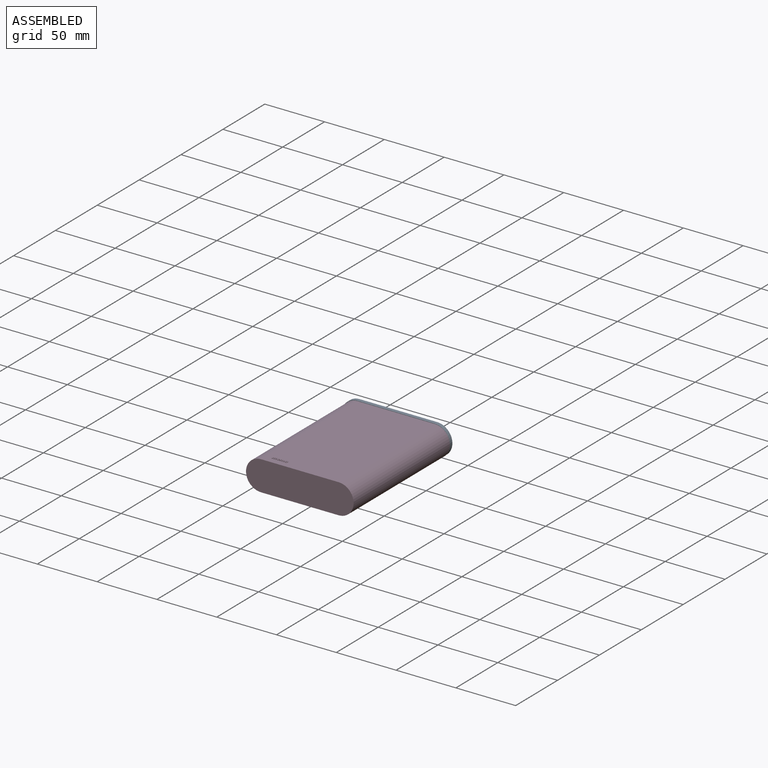
[diagram: assembled view]
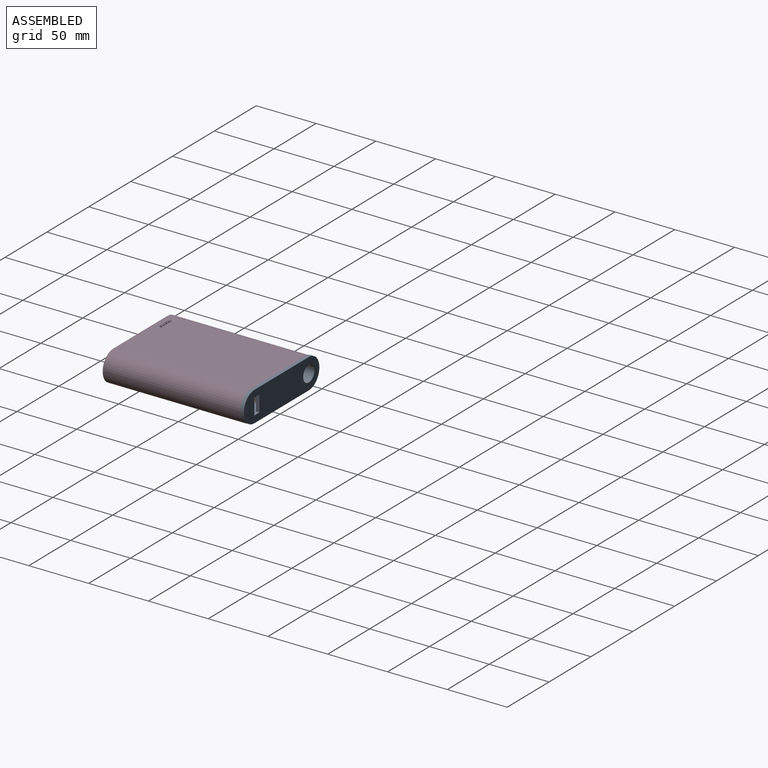
[diagram: assembled view, second angle]
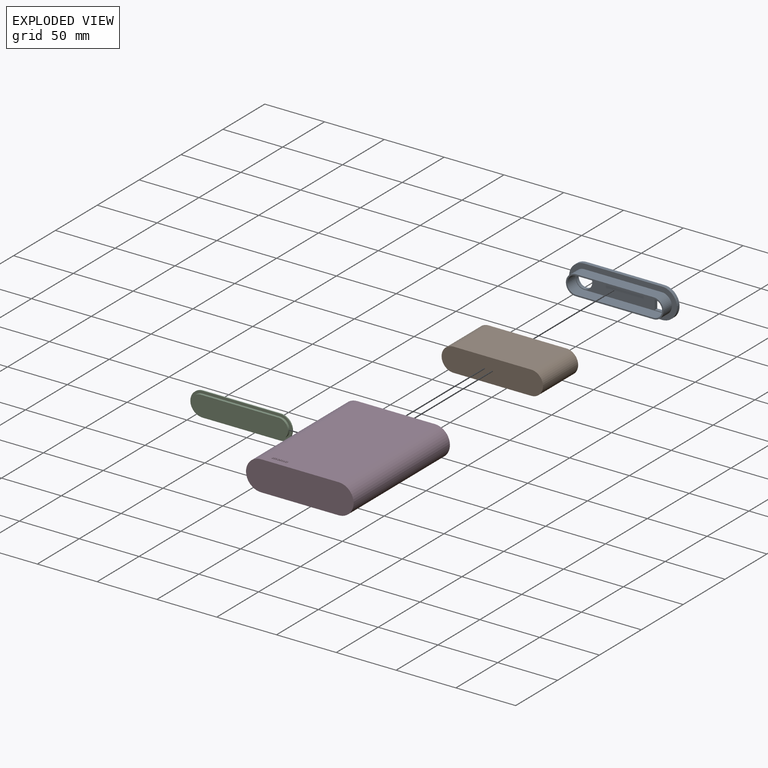
[diagram: exploded view]
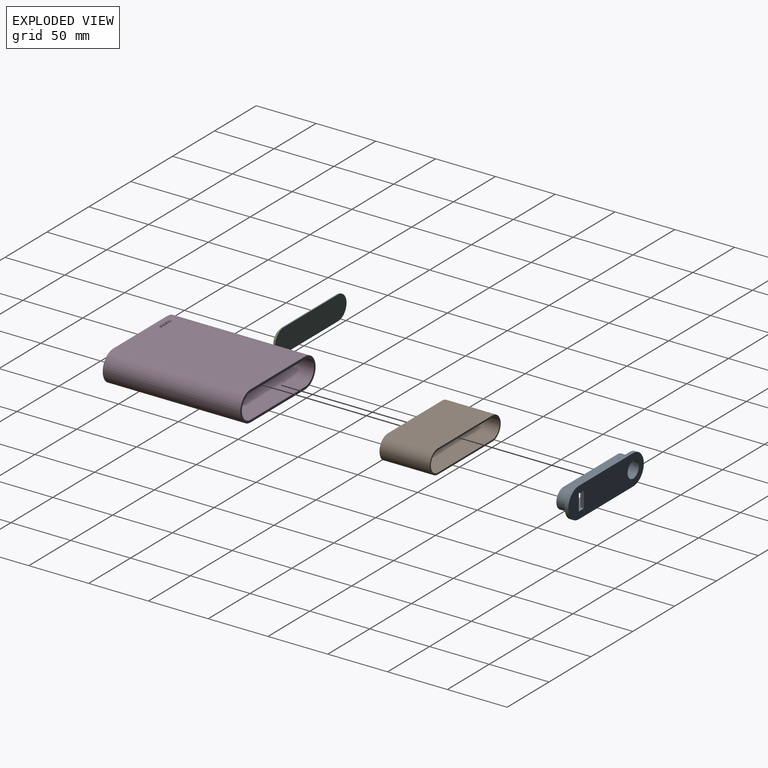
[diagram: exploded view, second angle]
ASSEMBLY  parts=4 mates=3
PART A: 21 faces, bbox 90.3x13x25.3 mm
  f0: plane 65x10mm, normal (0,0,-1), area 650mm2, adj f1,f7,f8,f20
  f1: cylinder r=7.25mm len=14.5mm, axis (0,1,0), area 227.1mm2, adj f0,f2,f8,f20
  f2: plane 64.94x10mm, normal (0,0,1), area 649.4mm2, adj f1,f7,f8,f20
  f3: cylinder r=8.33mm len=16.65mm, axis (0,1,0), area 260.9mm2, adj f4,f6,f8,f14
  f4: plane 65x10mm, normal (0,0,1), area 650mm2, adj f3,f5,f8,f14
  f5: cylinder r=8.33mm len=16.65mm, axis (0,1,0), area 261.6mm2, adj f4,f6,f8,f14
  f6: plane 64.94x10mm, normal (0,0,-1), area 649.4mm2, adj f3,f5,f8,f14
  f7: cylinder r=7.25mm len=14.5mm, axis (0,1,0), area 227.8mm2, adj f0,f2,f8,f20
  f8: plane 81.59x16.65mm, normal (0,-1,0), area 192.5mm2, adj f0,f1,f2,f3,f4,f5,f6,f7
  f9: plane 90.25x25.25mm, normal (0,1,0), area 1920.3mm2, adj f10,f11,f12,f13,f15,f16,f17,f18
  f10: cylinder r=12.63mm len=25.25mm, axis (0,1,0), area 119mm2, adj f9,f11,f13,f14
  f11: plane 65x3mm, normal (0,0,1), area 195mm2, adj f9,f10,f12,f14
  f12: cylinder r=12.63mm len=25.25mm, axis (0,1,0), area 119mm2, adj f9,f11,f13,f14
  f13: plane 65x3mm, normal (0,0,-1), area 195mm2, adj f9,f10,f12,f14
  f14: plane 90.25x25.25mm, normal (0,-1,0), area 843.1mm2, adj f3,f4,f5,f6,f10,f11,f12,f13
  f15: plane 13.5x3mm, normal (-1,0,0), area 40.5mm2, adj f9,f16,f18,f20
  f16: plane 6x3mm, normal (0,0,1), area 18mm2, adj f9,f15,f17,f20
  f17: plane 13.5x3mm, normal (1,0,0), area 40.5mm2, adj f9,f16,f18,f20
  f18: plane 6x3mm, normal (0,0,-1), area 18mm2, adj f9,f15,f17,f20
  f19: cylinder r=6.7mm len=13.4mm, axis (0,1,0), area 126.3mm2, adj f9,f20
  f20: plane 79.44x14.5mm, normal (0,-1,0), area 884.7mm2, adj f0,f1,f2,f7,f15,f16,f17,f18
PART B: 11 faces, bbox 84.8x42x19.8 mm
  f0: plane 84.8x19.8mm, normal (0,1,0), area 1594.9mm2, adj f5,f6,f7,f8
  f1: plane 65x40.5mm, normal (0,0,1), area 2632.5mm2, adj f3,f4,f9,f10
  f2: plane 65x40.5mm, normal (0,0,-1), area 2632.5mm2, adj f3,f4,f9,f10
  f3: cylinder r=8.5mm len=40.5mm, axis (0,1,0), area 1081.5mm2, adj f1,f2,f9,f10
  f4: cylinder r=8.5mm len=40.5mm, axis (0,1,0), area 1081.5mm2, adj f1,f2,f9,f10
  f5: plane 65x42mm, normal (0,0,-1), area 2730mm2, adj f0,f6,f8,f9
  f6: cylinder r=9.9mm len=42mm, axis (0,1,0), area 1306.3mm2, adj f0,f5,f7,f9
  f7: plane 65x42mm, normal (0,0,1), area 2730mm2, adj f0,f6,f8,f9
  f8: cylinder r=9.9mm len=42mm, axis (0,1,0), area 1306.3mm2, adj f0,f5,f7,f9
  f9: plane 84.8x19.8mm, normal (0,-1,0), area 262.9mm2, adj f1,f2,f3,f4,f5,f6,f7,f8
  f10: plane 82x17mm, normal (0,-1,0), area 1332mm2, adj f1,f2,f3,f4
PART C: 11 faces, bbox 85.2x3x20.2 mm
  f0: plane 65x1mm, normal (0,0,-1), area 65mm2, adj f1,f3,f4,f5
  f1: cylinder r=10.1mm len=20.2mm, axis (0,1,0), area 31.7mm2, adj f0,f2,f4,f5
  f2: plane 65x1mm, normal (0,0,1), area 65mm2, adj f1,f3,f4,f5
  f3: cylinder r=10.1mm len=20.2mm, axis (0,1,0), area 31.7mm2, adj f0,f2,f4,f5
  f4: plane 85.2x20.2mm, normal (0,-1,0), area 392.4mm2, adj f0,f1,f2,f3,f7,f8,f9,f10
  f5: plane 85.2x20.2mm, normal (0,1,0), area 1633.5mm2, adj f0,f1,f2,f3
  f6: plane 81x16mm, normal (0,-1,0), area 1241.1mm2, adj f7,f8,f9,f10
  f7: cylinder r=8mm len=16mm, axis (0,1,0), area 50.3mm2, adj f4,f6,f8,f10
  f8: plane 65x2mm, normal (0,0,1), area 130mm2, adj f4,f6,f7,f9
  f9: cylinder r=8mm len=16mm, axis (0,1,0), area 50.3mm2, adj f4,f6,f8,f10
  f10: plane 65x2mm, normal (0,0,-1), area 130mm2, adj f4,f6,f7,f9
PART D: 121 faces, bbox 90x115x25.4 mm
  f0: plane 115x65mm, normal (0,0,1), area 7457.5mm2, adj f1,f3,f8,f9,f21,f22,f23,f24
  f1: cylinder r=12.5mm len=115mm, axis (0,-1,0), area 4516mm2, adj f0,f2,f8,f9
  f2: plane 115x65mm, normal (0,0,-1), area 7475mm2, adj f1,f3,f8,f9
  f3: cylinder r=12.5mm len=115mm, axis (0,-1,0), area 4516mm2, adj f0,f2,f8,f9
  f4: plane 65.01x43mm, normal (0,0,1), area 2795mm2, adj f5,f7,f8,f14
  f5: cylinder r=10.5mm len=43mm, axis (0,-1,0), area 1418.4mm2, adj f4,f6,f8,f14
  f6: plane 65.01x43mm, normal (0,0,-1), area 2795mm2, adj f5,f7,f8,f14
  f7: cylinder r=10.5mm len=43mm, axis (0,-1,0), area 1418.4mm2, adj f4,f6,f8,f14
  f8: plane 90x25mm, normal (0,1,0), area 404.5mm2, adj f0,f1,f2,f3,f4,f5,f6,f7
  f9: plane 90x25mm, normal (0,-1,0), area 2115.9mm2, adj f0,f1,f2,f3
  f10: cylinder r=8.5mm len=17mm, axis (0,-1,0), area 53.4mm2, adj f11,f13,f14,f15
  f11: plane 65x2mm, normal (0,0,-1), area 130mm2, adj f10,f12,f14,f15
  f12: cylinder r=8.5mm len=17mm, axis (0,-1,0), area 53.4mm2, adj f11,f13,f14,f15
  f13: plane 65x2mm, normal (0,0,1), area 130mm2, adj f10,f12,f14,f15
  f14: plane 86.01x21.01mm, normal (0,1,0), area 378.9mm2, adj f4,f5,f6,f7,f10,f11,f12,f13
  f15: plane 86.01x21.01mm, normal (0,-1,0), area 378.9mm2, adj f10,f11,f12,f13,f17,f18,f19,f20
  f16: plane 86x21mm, normal (0,1,0), area 1711.4mm2, adj f17,f18,f19,f20
  f17: cylinder r=10.5mm len=68mm, axis (0,-1,0), area 2243.1mm2, adj f15,f16,f18,f20
  f18: plane 68x65.01mm, normal (0,0,-1), area 4420mm2, adj f15,f16,f17,f19
  f19: cylinder r=10.5mm len=68mm, axis (0,-1,0), area 2243.1mm2, adj f15,f16,f18,f20
  f20: plane 68x65.01mm, normal (0,0,1), area 4420mm2, adj f15,f16,f17,f19
  f21: plane 1.14x0.42mm, normal (1,0,0), area 0.5mm2, adj f0,f22,f48,f49
  f22: extruded ~0.52x0.42mm, area 0.2mm2, adj f0,f21,f23,f49
  f23: extruded ~0.42x0.34mm, area 0.2mm2, adj f0,f22,f24,f49
  f24: extruded ~0.42x0.26mm, area 0.1mm2, adj f0,f23,f25,f49
  f25: extruded ~0.42x0.37mm, area 0.2mm2, adj f0,f24,f26,f49
  f26: plane 1.33x0.42mm, normal (-1,0,0), area 0.6mm2, adj f0,f25,f27,f49
  f27: plane 0.62x0.42mm, normal (0,-1,0), area 0.3mm2, adj f0,f26,f28,f49
  f28: plane 1.48x0.42mm, normal (1,0,0), area 0.6mm2, adj f0,f27,f29,f49
  f29: extruded ~0.64x0.42mm, area 0.3mm2, adj f0,f28,f30,f49
  f30: extruded ~0.59x0.42mm, area 0.3mm2, adj f0,f29,f31,f49
  f31: extruded ~0.42x0.4mm, area 0.2mm2, adj f0,f30,f32,f49
  f32: extruded ~0.42x0.27mm, area 0.2mm2, adj f0,f31,f33,f49
  f33: plane 0.42x0.05mm, normal (0,1,0), area 0mm2, adj f0,f32,f34,f49
  f34: extruded ~0.69x0.42mm, area 0.3mm2, adj f0,f33,f35,f49
  f35: extruded ~0.42x0.4mm, area 0.2mm2, adj f0,f34,f36,f49
  f36: extruded ~0.42x0.26mm, area 0.2mm2, adj f0,f35,f37,f49
  f37: plane 0.42x0.03mm, normal (0,1,0), area 0mm2, adj f0,f36,f38,f49
  f38: plane 0.42x0.29mm, normal (0.96,0.28,0), area 0.1mm2, adj f0,f37,f39,f49
  f39: plane 0.47x0.42mm, normal (0,1,0), area 0.2mm2, adj f0,f38,f40,f49
  f40: plane 2.27x0.42mm, normal (-1,0,0), area 1mm2, adj f0,f39,f41,f49
  f41: plane 0.62x0.42mm, normal (0,-1,0), area 0.3mm2, adj f0,f40,f42,f49
  f42: plane 1.07x0.42mm, normal (1,0,0), area 0.5mm2, adj f0,f41,f43,f49
  f43: extruded ~0.58x0.42mm, area 0.2mm2, adj f0,f42,f44,f49
  f44: extruded ~0.42x0.35mm, area 0.2mm2, adj f0,f43,f45,f49
  f45: extruded ~0.42x0.26mm, area 0.1mm2, adj f0,f44,f46,f49
  f46: extruded ~0.42x0.37mm, area 0.2mm2, adj f0,f45,f47,f49
  f47: plane 1.33x0.42mm, normal (-1,0,0), area 0.6mm2, adj f0,f46,f48,f49
  f48: plane 0.62x0.42mm, normal (0,-1,0), area 0.3mm2, adj f0,f21,f47,f49
  f49: plane 3.45x2.32mm, normal (0,0,1), area 4.9mm2, adj f21,f22,f23,f24,f25,f26,f27,f28
  f50: extruded ~0.42x0.31mm, area 0.1mm2, adj f51,f69,f70,f71
  f51: extruded ~0.42x0.36mm, area 0.2mm2, adj f50,f52,f70,f71
  f52: plane 0.87x0.42mm, normal (0,1,0), area 0.4mm2, adj f51,f53,f70,f71
  f53: extruded ~0.42x0.36mm, area 0.2mm2, adj f52,f69,f70,f71
  f54: extruded ~0.45x0.42mm, area 0.2mm2, adj f0,f55,f68,f70
  f55: extruded ~0.42x0.35mm, area 0.2mm2, adj f0,f54,f56,f70
  f56: plane 0.48x0.42mm, normal (1,0,0), area 0.2mm2, adj f0,f55,f57,f70
  f57: extruded ~0.42x0.38mm, area 0.2mm2, adj f0,f56,f58,f70
  f58: extruded ~0.42x0.39mm, area 0.2mm2, adj f0,f57,f59,f70
  f59: extruded ~0.42x0.41mm, area 0.2mm2, adj f0,f58,f60,f70
  f60: extruded ~0.42x0.41mm, area 0.2mm2, adj f0,f59,f61,f70
  f61: plane 1.47x0.42mm, normal (0,-1,0), area 0.6mm2, adj f0,f60,f62,f70
  f62: plane 0.42x0.3mm, normal (1,0,0), area 0.1mm2, adj f0,f61,f63,f70
  f63: extruded ~0.76x0.42mm, area 0.3mm2, adj f0,f62,f64,f70
  f64: extruded ~0.75x0.42mm, area 0.3mm2, adj f0,f63,f65,f70
  f65: extruded ~0.79x0.42mm, area 0.4mm2, adj f0,f64,f66,f70
  f66: extruded ~0.88x0.42mm, area 0.4mm2, adj f0,f65,f67,f70
  f67: extruded ~0.86x0.42mm, area 0.4mm2, adj f0,f66,f68,f70
  f68: extruded ~0.86x0.42mm, area 0.4mm2, adj f0,f54,f67,f70
  f69: extruded ~0.42x0.31mm, area 0.1mm2, adj f50,f53,f70,f71
  f70: plane 2.36x2.1mm, normal (0,0,1), area 3.1mm2, adj f50,f51,f52,f53,f54,f55,f56,f57
  f71: plane 0.87x0.48mm, normal (0,0,1), area 0.3mm2, adj f50,f51,f52,f53,f69
  f72: plane 1.14x0.42mm, normal (1,0,0), area 0.5mm2, adj f0,f73,f99,f100
  f73: extruded ~0.52x0.42mm, area 0.2mm2, adj f0,f72,f74,f100
  f74: extruded ~0.42x0.34mm, area 0.2mm2, adj f0,f73,f75,f100
  f75: extruded ~0.42x0.26mm, area 0.1mm2, adj f0,f74,f76,f100
  f76: extruded ~0.42x0.37mm, area 0.2mm2, adj f0,f75,f77,f100
  f77: plane 1.33x0.42mm, normal (-1,0,0), area 0.6mm2, adj f0,f76,f78,f100
  f78: plane 0.62x0.42mm, normal (0,-1,0), area 0.3mm2, adj f0,f77,f79,f100
  f79: plane 1.48x0.42mm, normal (1,0,0), area 0.6mm2, adj f0,f78,f80,f100
  f80: extruded ~0.64x0.42mm, area 0.3mm2, adj f0,f79,f81,f100
  f81: extruded ~0.59x0.42mm, area 0.3mm2, adj f0,f80,f82,f100
  f82: extruded ~0.42x0.4mm, area 0.2mm2, adj f0,f81,f83,f100
  f83: extruded ~0.42x0.27mm, area 0.2mm2, adj f0,f82,f84,f100
  f84: plane 0.42x0.05mm, normal (0,1,0), area 0mm2, adj f0,f83,f85,f100
  f85: extruded ~0.69x0.42mm, area 0.3mm2, adj f0,f84,f86,f100
  f86: extruded ~0.42x0.4mm, area 0.2mm2, adj f0,f85,f87,f100
  f87: extruded ~0.42x0.26mm, area 0.2mm2, adj f0,f86,f88,f100
  f88: plane 0.42x0.03mm, normal (0,1,0), area 0mm2, adj f0,f87,f89,f100
  f89: plane 0.42x0.29mm, normal (0.96,0.28,0), area 0.1mm2, adj f0,f88,f90,f100
  f90: plane 0.47x0.42mm, normal (0,1,0), area 0.2mm2, adj f0,f89,f91,f100
  f91: plane 2.27x0.42mm, normal (-1,0,0), area 1mm2, adj f0,f90,f92,f100
  f92: plane 0.62x0.42mm, normal (0,-1,0), area 0.3mm2, adj f0,f91,f93,f100
  f93: plane 1.07x0.42mm, normal (1,0,0), area 0.5mm2, adj f0,f92,f94,f100
  f94: extruded ~0.58x0.42mm, area 0.2mm2, adj f0,f93,f95,f100
  f95: extruded ~0.42x0.35mm, area 0.2mm2, adj f0,f94,f96,f100
  f96: extruded ~0.42x0.26mm, area 0.1mm2, adj f0,f95,f97,f100
  f97: extruded ~0.42x0.37mm, area 0.2mm2, adj f0,f96,f98,f100
  f98: plane 1.33x0.42mm, normal (-1,0,0), area 0.6mm2, adj f0,f97,f99,f100
  f99: plane 0.62x0.42mm, normal (0,-1,0), area 0.3mm2, adj f0,f72,f98,f100
  f100: plane 3.45x2.32mm, normal (0,0,1), area 4.9mm2, adj f72,f73,f74,f75,f76,f77,f78,f79
  f101: extruded ~0.51x0.42mm, area 0.2mm2, adj f102,f118,f119,f120
  f102: extruded ~0.42x0.36mm, area 0.2mm2, adj f101,f103,f119,f120
  f103: extruded ~0.42x0.36mm, area 0.2mm2, adj f102,f104,f119,f120
  f104: extruded ~0.51x0.42mm, area 0.2mm2, adj f103,f105,f119,f120
  f105: extruded ~0.51x0.42mm, area 0.2mm2, adj f104,f106,f119,f120
  f106: extruded ~0.42x0.36mm, area 0.2mm2, adj f105,f107,f119,f120
  f107: extruded ~0.42x0.36mm, area 0.2mm2, adj f106,f118,f119,f120
  f108: extruded ~0.62x0.42mm, area 0.3mm2, adj f0,f109,f117,f119
  f109: extruded ~0.42x0.41mm, area 0.2mm2, adj f0,f108,f110,f119
  f110: extruded ~0.58x0.42mm, area 0.3mm2, adj f0,f109,f111,f119
  f111: extruded ~0.82x0.42mm, area 0.4mm2, adj f0,f110,f112,f119
  f112: extruded ~0.87x0.42mm, area 0.4mm2, adj f0,f111,f113,f119
  f113: extruded ~0.63x0.42mm, area 0.3mm2, adj f0,f112,f114,f119
  f114: extruded ~0.42x0.41mm, area 0.2mm2, adj f0,f113,f115,f119
  f115: extruded ~0.58x0.42mm, area 0.3mm2, adj f0,f114,f116,f119
  f116: extruded ~0.82x0.42mm, area 0.4mm2, adj f0,f115,f117,f119
  f117: extruded ~0.87x0.42mm, area 0.4mm2, adj f0,f108,f116,f119
  f118: extruded ~0.51x0.42mm, area 0.2mm2, adj f101,f107,f119,f120
  f119: plane 2.36x2.21mm, normal (0,0,1), area 3.2mm2, adj f101,f102,f103,f104,f105,f106,f107,f108
  f120: plane 1.36x0.94mm, normal (0,0,1), area 1.1mm2, adj f101,f102,f103,f104,f105,f106,f107,f118
PLACE A t=(6.61,47.09,12.77)mm
PLACE B rot(axis=(1,0,0),180deg) t=(-5.79,2.09,12.92)mm
PLACE C t=(-5.79,2.09,12.92)mm
PLACE D t=(-3.85,-70.91,25.35)mm
MATE planar C.f4 <-> D.f14  axis (0,-1,0) through (-5.79,1.09,12.92)mm
MATE planar A.f14 <-> D.f8  axis (0,-1,0) through (26.44,44.09,21.46)mm
MATE planar B.f0 <-> C.f5  axis (0,-1,0) through (-5.79,2.09,12.92)mm
